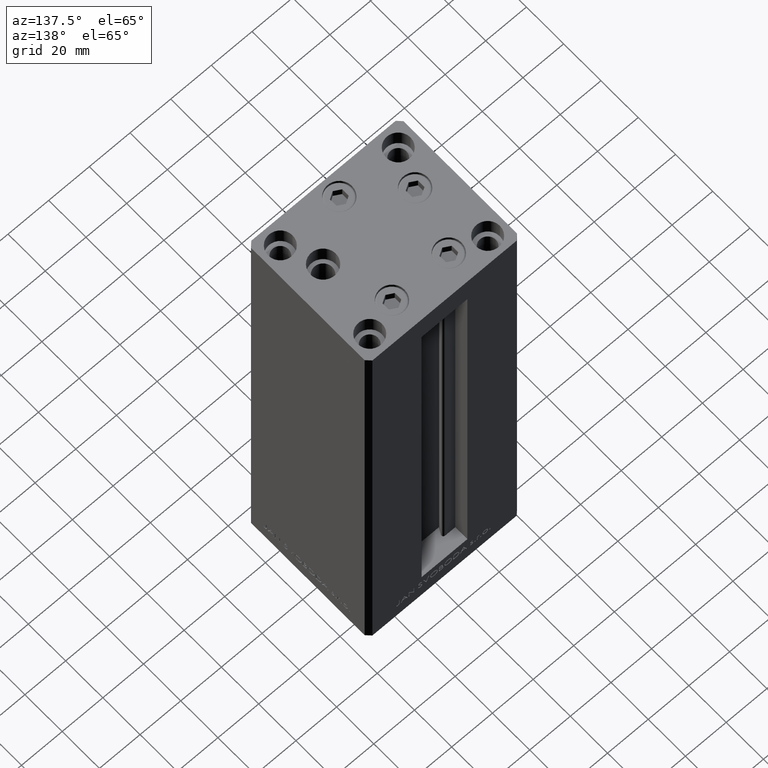
[diagram: clean part render]
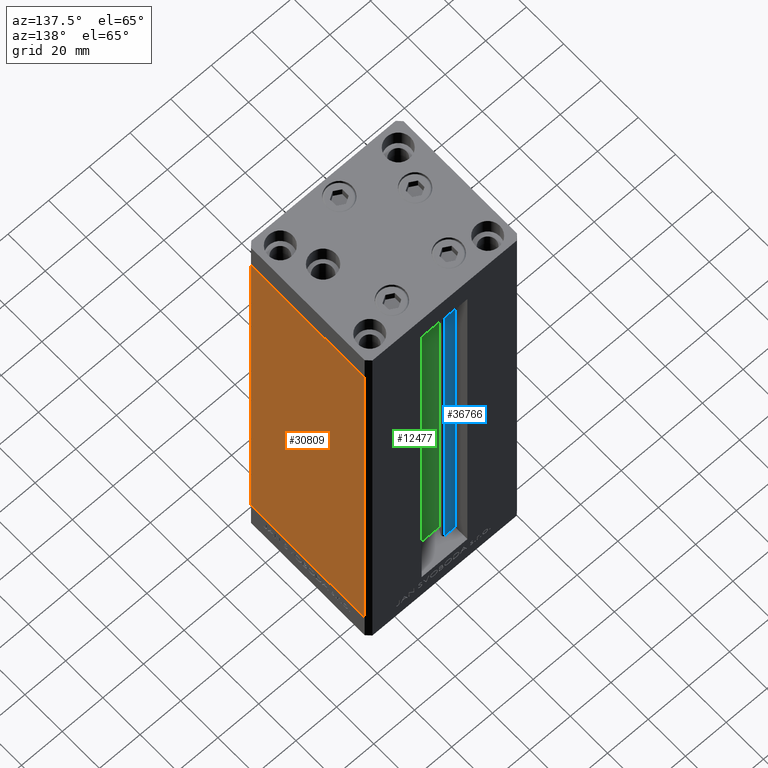
[diagram: same view with three faces highlighted in distinct colors, each labeled with its STEP entity id]
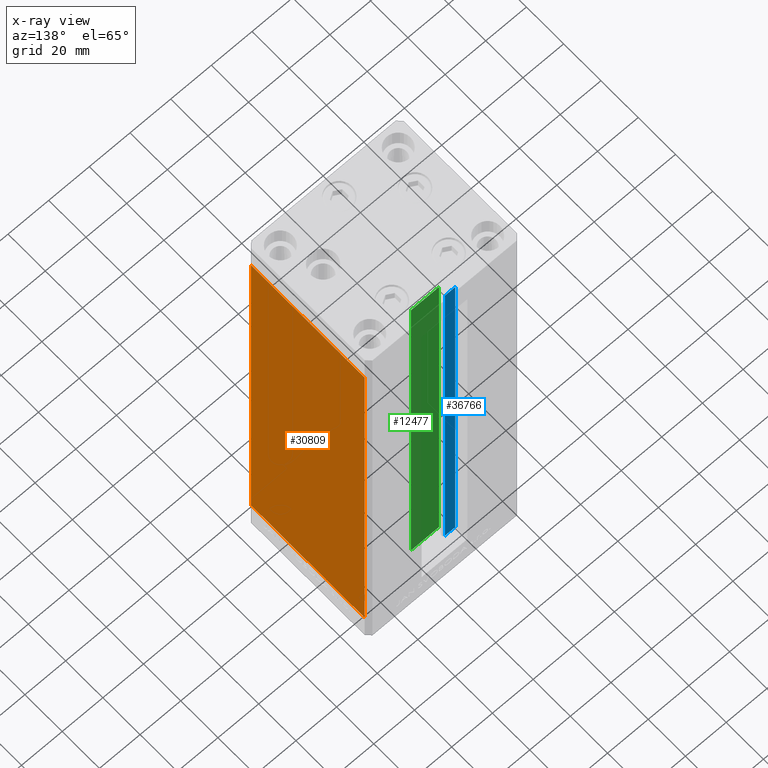
[diagram: x-ray of the same camera — body ghosted, the three highlighted faces saturated]
A machine part, auxiliary view with three faces highlighted in distinct colors.
The next image is the same camera in x-ray (body ghosted, the three faces saturated) — at least one of them is partly hidden behind the body in this view.
Their STEP definitions:

[orange] entity #30809 — the highlighted planar face has unit normal (1, -0, 0).
#1423 = PLANE ( 'NONE',  #47927 ) ;
#1665 = CARTESIAN_POINT ( 'NONE',  ( 37.50000000000000711, 30.50000000000000000, 206.0000000000000000 ) ) ;
#1816 = VECTOR ( 'NONE', #5562, 1000.000000000000000 ) ;
#5562 = DIRECTION ( 'NONE',  ( -2.275047181608927644E-16, -1.000000000000000000, 0.000000000000000000 ) ) ;
#6877 = VECTOR ( 'NONE', #28556, 1000.000000000000000 ) ;
#8205 = DIRECTION ( 'NONE',  ( 1.000000000000000000, -2.275047181608928137E-16, 0.000000000000000000 ) ) ;
#10451 = CARTESIAN_POINT ( 'NONE',  ( 37.50000000000000711, 30.50000000000000000, 206.0000000000000000 ) ) ;
#10562 = ORIENTED_EDGE ( 'NONE', *, *, #37675, .F. ) ;
#12927 = EDGE_CURVE ( 'NONE', #23177, #26778, #45916, .T. ) ;
#13557 = CARTESIAN_POINT ( 'NONE',  ( 37.50000000000000711, 30.50000000000000000, 206.0000000000000000 ) ) ;
#14215 = LINE ( 'NONE', #10451, #25028 ) ;
#14878 = EDGE_CURVE ( 'NONE', #21632, #26778, #31944, .T. ) ;
#15261 = CARTESIAN_POINT ( 'NONE',  ( 37.49999999999999289, -30.50000000000000000, 206.0000000000000000 ) ) ;
#17597 = ORIENTED_EDGE ( 'NONE', *, *, #14878, .F. ) ;
#18703 = CARTESIAN_POINT ( 'NONE',  ( 37.49999999999999289, -30.50000000000000000, 0.000000000000000000 ) ) ;
#21632 = VERTEX_POINT ( 'NONE', #48698 ) ;
#23177 = VERTEX_POINT ( 'NONE', #29867 ) ;
#23520 = DIRECTION ( 'NONE',  ( 2.275047181608928137E-16, 1.000000000000000000, 0.000000000000000000 ) ) ;
#25028 = VECTOR ( 'NONE', #25779, 1000.000000000000000 ) ;
#25411 = CARTESIAN_POINT ( 'NONE',  ( 37.50000000000000711, 30.50000000000000000, 0.000000000000000000 ) ) ;
#25779 = DIRECTION ( 'NONE',  ( -0.000000000000000000, -0.000000000000000000, -1.000000000000000000 ) ) ;
#26778 = VERTEX_POINT ( 'NONE', #18703 ) ;
#28196 = VECTOR ( 'NONE', #38630, 1000.000000000000000 ) ;
#28556 = DIRECTION ( 'NONE',  ( -2.275047181608927644E-16, -1.000000000000000000, 0.000000000000000000 ) ) ;
#29528 = ORIENTED_EDGE ( 'NONE', *, *, #49428, .T. ) ;
#29867 = CARTESIAN_POINT ( 'NONE',  ( 37.49999999999999289, -30.50000000000000000, 206.0000000000000000 ) ) ;
#30809 = ADVANCED_FACE ( 'NONE', ( #36087 ), #1423, .T. ) ;
#31944 = LINE ( 'NONE', #25411, #1816 ) ;
#31965 = ORIENTED_EDGE ( 'NONE', *, *, #12927, .T. ) ;
#32501 = EDGE_LOOP ( 'NONE', ( #17597, #10562, #29528, #31965 ) ) ;
#33752 = LINE ( 'NONE', #49066, #6877 ) ;
#36087 = FACE_OUTER_BOUND ( 'NONE', #32501, .T. ) ;
#37675 = EDGE_CURVE ( 'NONE', #44012, #21632, #14215, .T. ) ;
#38630 = DIRECTION ( 'NONE',  ( -0.000000000000000000, -0.000000000000000000, -1.000000000000000000 ) ) ;
#44012 = VERTEX_POINT ( 'NONE', #13557 ) ;
#45916 = LINE ( 'NONE', #15261, #28196 ) ;
#47927 = AXIS2_PLACEMENT_3D ( 'NONE', #1665, #8205, #23520 ) ;
#48698 = CARTESIAN_POINT ( 'NONE',  ( 37.50000000000000711, 30.50000000000000000, 0.000000000000000000 ) ) ;
#49066 = CARTESIAN_POINT ( 'NONE',  ( 37.50000000000000711, 30.50000000000000000, 206.0000000000000000 ) ) ;
#49428 = EDGE_CURVE ( 'NONE', #44012, #23177, #33752, .T. ) ;

[blue] entity #36766 — the highlighted planar face has unit normal (0, -1, 0).
#615 = DIRECTION ( 'NONE',  ( 0.000000000000000000, -1.000000000000000000, -0.000000000000000000 ) ) ;
#655 = VERTEX_POINT ( 'NONE', #7845 ) ;
#1095 = DIRECTION ( 'NONE',  ( -0.000000000000000000, -0.000000000000000000, 1.000000000000000000 ) ) ;
#1411 = VECTOR ( 'NONE', #47255, 1000.000000000000000 ) ;
#3416 = VECTOR ( 'NONE', #1095, 1000.000000000000000 ) ;
#5043 = LINE ( 'NONE', #24894, #1411 ) ;
#7325 = VECTOR ( 'NONE', #24008, 1000.000000000000000 ) ;
#7556 = VERTEX_POINT ( 'NONE', #17161 ) ;
#7845 = CARTESIAN_POINT ( 'NONE',  ( -6.183333333334001480, 25.99999999999999289, 206.0000000000000000 ) ) ;
#8394 = CARTESIAN_POINT ( 'NONE',  ( -6.183333333334001480, 25.99999999999999289, 0.000000000000000000 ) ) ;
#8399 = DIRECTION ( 'NONE',  ( 0.000000000000000000, 0.000000000000000000, -1.000000000000000000 ) ) ;
#8697 = CARTESIAN_POINT ( 'NONE',  ( 0.000000000000000000, 25.99999999999999289, 206.0000000000000000 ) ) ;
#11194 = EDGE_CURVE ( 'NONE', #655, #37561, #27786, .T. ) ;
#13136 = ORIENTED_EDGE ( 'NONE', *, *, #30088, .T. ) ;
#14603 = EDGE_CURVE ( 'NONE', #17155, #655, #27479, .T. ) ;
#17155 = VERTEX_POINT ( 'NONE', #36051 ) ;
#17161 = CARTESIAN_POINT ( 'NONE',  ( -11.25000000000000178, 25.99999999999999289, 0.000000000000000000 ) ) ;
#17271 = EDGE_CURVE ( 'NONE', #7556, #17155, #24104, .T. ) ;
#21513 = CARTESIAN_POINT ( 'NONE',  ( -11.25000000000000178, 25.99999999999999289, 206.0000000000000000 ) ) ;
#24008 = DIRECTION ( 'NONE',  ( -1.000000000000000000, 0.000000000000000000, 0.000000000000000000 ) ) ;
#24104 = LINE ( 'NONE', #49585, #31447 ) ;
#24589 = ORIENTED_EDGE ( 'NONE', *, *, #17271, .F. ) ;
#24894 = CARTESIAN_POINT ( 'NONE',  ( -11.25000000000000178, 25.99999999999999289, 0.000000000000000000 ) ) ;
#27479 = LINE ( 'NONE', #8394, #3416 ) ;
#27786 = LINE ( 'NONE', #8697, #7325 ) ;
#29035 = ORIENTED_EDGE ( 'NONE', *, *, #14603, .F. ) ;
#30088 = EDGE_CURVE ( 'NONE', #7556, #37561, #5043, .T. ) ;
#30760 = FACE_OUTER_BOUND ( 'NONE', #38772, .T. ) ;
#31447 = VECTOR ( 'NONE', #47229, 1000.000000000000000 ) ;
#36051 = CARTESIAN_POINT ( 'NONE',  ( -6.183333333334001480, 25.99999999999999289, 0.000000000000000000 ) ) ;
#36766 = ADVANCED_FACE ( 'NONE', ( #30760 ), #39065, .F. ) ;
#37561 = VERTEX_POINT ( 'NONE', #21513 ) ;
#38772 = EDGE_LOOP ( 'NONE', ( #29035, #24589, #13136, #43902 ) ) ;
#39065 = PLANE ( 'NONE',  #42664 ) ;
#39306 = CARTESIAN_POINT ( 'NONE',  ( -6.183333333334001480, 25.99999999999999289, 0.000000000000000000 ) ) ;
#42664 = AXIS2_PLACEMENT_3D ( 'NONE', #39306, #615, #8399 ) ;
#43902 = ORIENTED_EDGE ( 'NONE', *, *, #11194, .F. ) ;
#47229 = DIRECTION ( 'NONE',  ( 1.000000000000000000, -0.000000000000000000, -0.000000000000000000 ) ) ;
#47255 = DIRECTION ( 'NONE',  ( -0.000000000000000000, -0.000000000000000000, 1.000000000000000000 ) ) ;
#49585 = CARTESIAN_POINT ( 'NONE',  ( -6.183333333334001480, 25.99999999999999289, 0.000000000000000000 ) ) ;

[green] entity #12477 — the highlighted planar face has unit normal (0, -1, 0).
#16 = VERTEX_POINT ( 'NONE', #46403 ) ;
#612 = DIRECTION ( 'NONE',  ( 0.000000000000000000, -1.000000000000000000, -0.000000000000000000 ) ) ;
#1364 = DIRECTION ( 'NONE',  ( 0.000000000000000000, 0.000000000000000000, -1.000000000000000000 ) ) ;
#1826 = VECTOR ( 'NONE', #6072, 1000.000000000000000 ) ;
#3362 = LINE ( 'NONE', #14923, #34201 ) ;
#4383 = FACE_OUTER_BOUND ( 'NONE', #7153, .T. ) ;
#6072 = DIRECTION ( 'NONE',  ( -0.000000000000000000, -0.000000000000000000, 1.000000000000000000 ) ) ;
#7140 = DIRECTION ( 'NONE',  ( 1.000000000000000000, -0.000000000000000000, -0.000000000000000000 ) ) ;
#7153 = EDGE_LOOP ( 'NONE', ( #45378, #36155, #21747, #14221 ) ) ;
#10337 = LINE ( 'NONE', #25902, #1826 ) ;
#12477 = ADVANCED_FACE ( 'NONE', ( #4383 ), #38565, .F. ) ;
#14221 = ORIENTED_EDGE ( 'NONE', *, *, #37409, .F. ) ;
#14548 = DIRECTION ( 'NONE',  ( -0.000000000000000000, -0.000000000000000000, 1.000000000000000000 ) ) ;
#14923 = CARTESIAN_POINT ( 'NONE',  ( 6.876153656360466826, 21.99999999999986855, 0.000000000000000000 ) ) ;
#15766 = DIRECTION ( 'NONE',  ( -1.000000000000000000, 0.000000000000000000, 0.000000000000000000 ) ) ;
#19631 = EDGE_CURVE ( 'NONE', #47965, #19953, #32683, .T. ) ;
#19953 = VERTEX_POINT ( 'NONE', #44179 ) ;
#20273 = VECTOR ( 'NONE', #14548, 1000.000000000000000 ) ;
#20529 = CARTESIAN_POINT ( 'NONE',  ( 0.000000000000000000, 21.99999999999986855, 206.0000000000000000 ) ) ;
#21372 = CARTESIAN_POINT ( 'NONE',  ( -6.876153656360466826, 21.99999999999986855, 0.000000000000000000 ) ) ;
#21747 = ORIENTED_EDGE ( 'NONE', *, *, #19631, .T. ) ;
#25902 = CARTESIAN_POINT ( 'NONE',  ( 6.876153656360466826, 21.99999999999986855, 0.000000000000000000 ) ) ;
#26733 = EDGE_CURVE ( 'NONE', #47965, #38012, #3362, .T. ) ;
#27188 = CARTESIAN_POINT ( 'NONE',  ( 6.876153656360466826, 21.99999999999986855, 0.000000000000000000 ) ) ;
#27554 = LINE ( 'NONE', #20529, #35451 ) ;
#32683 = LINE ( 'NONE', #21372, #20273 ) ;
#34201 = VECTOR ( 'NONE', #7140, 1000.000000000000000 ) ;
#35451 = VECTOR ( 'NONE', #15766, 1000.000000000000000 ) ;
#35787 = CARTESIAN_POINT ( 'NONE',  ( 6.876153656360466826, 21.99999999999986855, 0.000000000000000000 ) ) ;
#36155 = ORIENTED_EDGE ( 'NONE', *, *, #26733, .F. ) ;
#37409 = EDGE_CURVE ( 'NONE', #16, #19953, #27554, .T. ) ;
#38012 = VERTEX_POINT ( 'NONE', #27188 ) ;
#38489 = EDGE_CURVE ( 'NONE', #38012, #16, #10337, .T. ) ;
#38565 = PLANE ( 'NONE',  #41867 ) ;
#40962 = CARTESIAN_POINT ( 'NONE',  ( -6.876153656360466826, 21.99999999999986855, 0.000000000000000000 ) ) ;
#41867 = AXIS2_PLACEMENT_3D ( 'NONE', #35787, #612, #1364 ) ;
#44179 = CARTESIAN_POINT ( 'NONE',  ( -6.876153656360466826, 21.99999999999986855, 206.0000000000000000 ) ) ;
#45378 = ORIENTED_EDGE ( 'NONE', *, *, #38489, .F. ) ;
#46403 = CARTESIAN_POINT ( 'NONE',  ( 6.876153656360466826, 21.99999999999986855, 206.0000000000000000 ) ) ;
#47965 = VERTEX_POINT ( 'NONE', #40962 ) ;